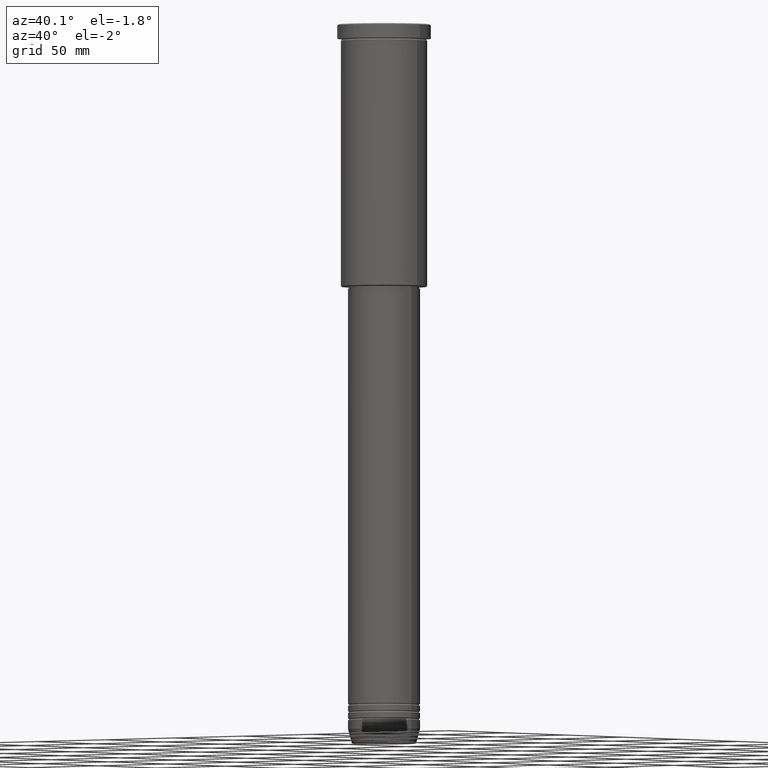
[diagram: clean part render]
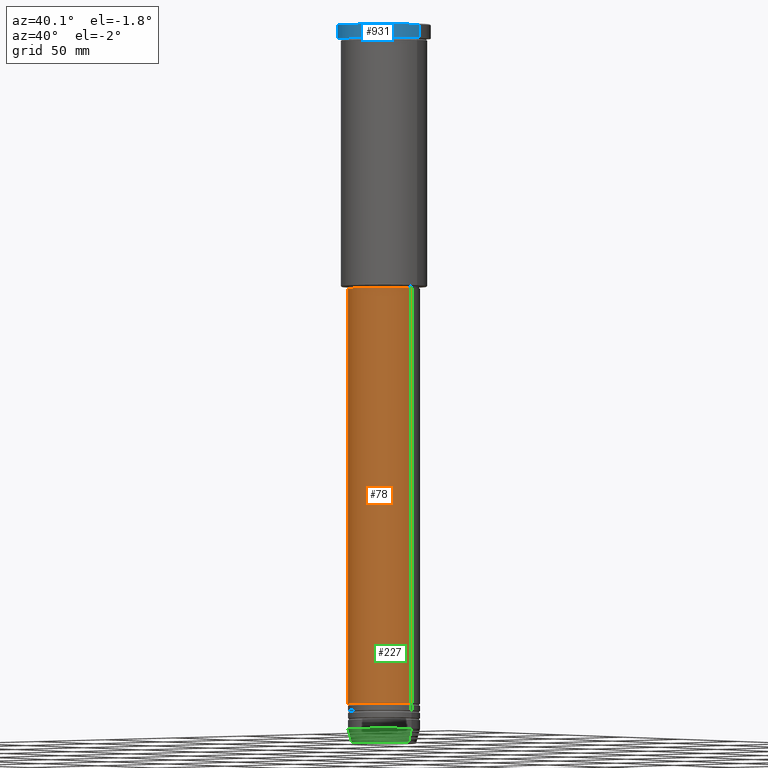
[diagram: same view with three faces highlighted in distinct colors, each labeled with its STEP entity id]
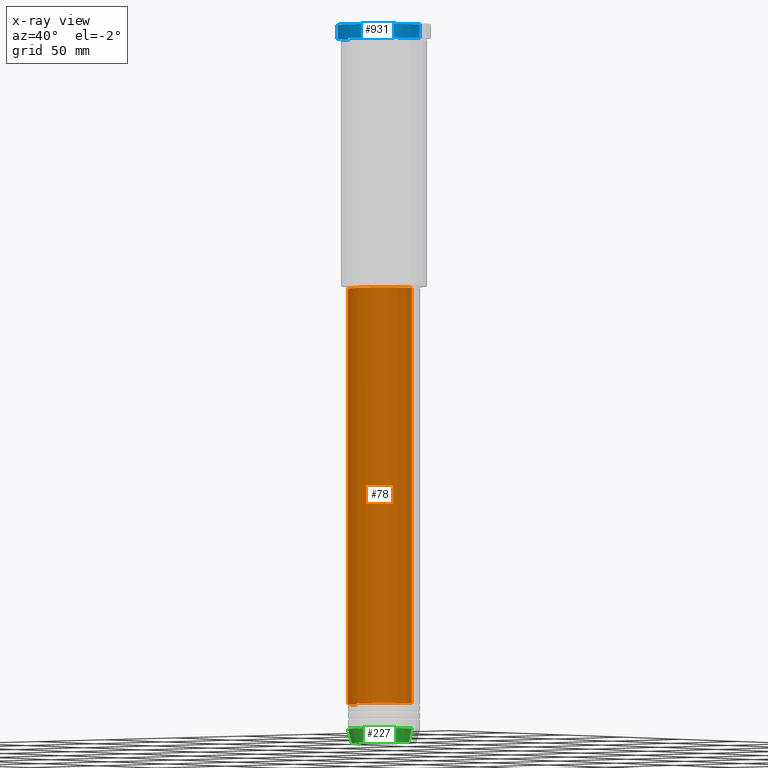
[diagram: x-ray of the same camera — body ghosted, the three highlighted faces saturated]
A machine part, auxiliary view with three faces highlighted in distinct colors.
The next image is the same camera in x-ray (body ghosted, the three faces saturated) — at least one of them is partly hidden behind the body in this view.
Their STEP definitions:

[orange] entity #78 — the highlighted cylindrical surface (edge-blend (fillet) strip) has radius 20 mm, axis along (-0, -0, 1).
#11 = CARTESIAN_POINT ( 'NONE',  ( -20.00000000000000355, 2.449293598294706907E-15, -146.9999999999999147 ) ) ;
#13 = ORIENTED_EDGE ( 'NONE', *, *, #674, .F. ) ;
#57 = LINE ( 'NONE', #596, #468 ) ;
#78 = ADVANCED_FACE ( 'NONE', ( #847 ), #663, .T. ) ;
#85 = VERTEX_POINT ( 'NONE', #1139 ) ;
#104 = AXIS2_PLACEMENT_3D ( 'NONE', #406, #497, #1037 ) ;
#124 = AXIS2_PLACEMENT_3D ( 'NONE', #650, #479, #1179 ) ;
#158 = VECTOR ( 'NONE', #981, 1000.000000000000000 ) ;
#208 = AXIS2_PLACEMENT_3D ( 'NONE', #305, #849, #1040 ) ;
#305 = CARTESIAN_POINT ( 'NONE',  ( 0.000000000000000000, 0.000000000000000000, -146.9999999999999147 ) ) ;
#350 = VERTEX_POINT ( 'NONE', #476 ) ;
#406 = CARTESIAN_POINT ( 'NONE',  ( 0.000000000000000000, 0.000000000000000000, 0.000000000000000000 ) ) ;
#422 = LINE ( 'NONE', #607, #158 ) ;
#459 = EDGE_CURVE ( 'NONE', #919, #350, #1031, .T. ) ;
#468 = VECTOR ( 'NONE', #954, 1000.000000000000000 ) ;
#476 = CARTESIAN_POINT ( 'NONE',  ( 20.00000000000000355, 0.000000000000000000, -378.0000000000000000 ) ) ;
#479 = DIRECTION ( 'NONE',  ( -0.000000000000000000, -0.000000000000000000, 1.000000000000000000 ) ) ;
#497 = DIRECTION ( 'NONE',  ( -0.000000000000000000, -0.000000000000000000, 1.000000000000000000 ) ) ;
#553 = CARTESIAN_POINT ( 'NONE',  ( -20.00000000000000355, 2.449293598294706907E-15, -378.0000000000000000 ) ) ;
#596 = CARTESIAN_POINT ( 'NONE',  ( 20.00000000000000355, 0.000000000000000000, 0.000000000000000000 ) ) ;
#601 = CIRCLE ( 'NONE', #208, 20.00000000000000355 ) ;
#607 = CARTESIAN_POINT ( 'NONE',  ( -20.00000000000000355, 2.449293598294706907E-15, 0.000000000000000000 ) ) ;
#642 = ORIENTED_EDGE ( 'NONE', *, *, #837, .T. ) ;
#650 = CARTESIAN_POINT ( 'NONE',  ( 0.000000000000000000, 0.000000000000000000, -378.0000000000000000 ) ) ;
#663 = CYLINDRICAL_SURFACE ( 'NONE', #104, 20.00000000000000355 ) ;
#674 = EDGE_CURVE ( 'NONE', #1000, #85, #601, .T. ) ;
#779 = ORIENTED_EDGE ( 'NONE', *, *, #834, .F. ) ;
#834 = EDGE_CURVE ( 'NONE', #919, #1000, #422, .T. ) ;
#837 = EDGE_CURVE ( 'NONE', #350, #85, #57, .T. ) ;
#847 = FACE_OUTER_BOUND ( 'NONE', #1107, .T. ) ;
#849 = DIRECTION ( 'NONE',  ( -0.000000000000000000, -0.000000000000000000, 1.000000000000000000 ) ) ;
#919 = VERTEX_POINT ( 'NONE', #553 ) ;
#954 = DIRECTION ( 'NONE',  ( -0.000000000000000000, -0.000000000000000000, 1.000000000000000000 ) ) ;
#981 = DIRECTION ( 'NONE',  ( -0.000000000000000000, -0.000000000000000000, 1.000000000000000000 ) ) ;
#1000 = VERTEX_POINT ( 'NONE', #11 ) ;
#1031 = CIRCLE ( 'NONE', #124, 20.00000000000000355 ) ;
#1037 = DIRECTION ( 'NONE',  ( 1.000000000000000000, 0.000000000000000000, 0.000000000000000000 ) ) ;
#1040 = DIRECTION ( 'NONE',  ( 1.000000000000000000, 0.000000000000000000, 0.000000000000000000 ) ) ;
#1107 = EDGE_LOOP ( 'NONE', ( #779, #1144, #642, #13 ) ) ;
#1139 = CARTESIAN_POINT ( 'NONE',  ( 20.00000000000000355, 0.000000000000000000, -146.9999999999999147 ) ) ;
#1144 = ORIENTED_EDGE ( 'NONE', *, *, #459, .T. ) ;
#1179 = DIRECTION ( 'NONE',  ( 1.000000000000000000, 0.000000000000000000, 0.000000000000000000 ) ) ;

[blue] entity #931 — the highlighted cylindrical surface (partial cylindrical patch) has radius 26 mm, axis along (-0, -0, 1).
#7 = EDGE_CURVE ( 'NONE', #150, #456, #559, .T. ) ;
#37 = CARTESIAN_POINT ( 'NONE',  ( 26.00000000000000000, 0.000000000000000000, -7.999999999999992895 ) ) ;
#76 = ORIENTED_EDGE ( 'NONE', *, *, #7, .T. ) ;
#90 = DIRECTION ( 'NONE',  ( -0.000000000000000000, -0.000000000000000000, 1.000000000000000000 ) ) ;
#109 = ORIENTED_EDGE ( 'NONE', *, *, #201, .F. ) ;
#115 = VERTEX_POINT ( 'NONE', #1029 ) ;
#144 = VECTOR ( 'NONE', #606, 1000.000000000000000 ) ;
#150 = VERTEX_POINT ( 'NONE', #37 ) ;
#155 = ORIENTED_EDGE ( 'NONE', *, *, #519, .T. ) ;
#198 = CARTESIAN_POINT ( 'NONE',  ( 26.00000000000000000, 0.000000000000000000, 0.000000000000000000 ) ) ;
#201 = EDGE_CURVE ( 'NONE', #115, #433, #1161, .T. ) ;
#224 = DIRECTION ( 'NONE',  ( -0.000000000000000000, -0.000000000000000000, 1.000000000000000000 ) ) ;
#231 = EDGE_CURVE ( 'NONE', #456, #433, #470, .T. ) ;
#249 = CARTESIAN_POINT ( 'NONE',  ( -26.00000000000000000, 3.184081677783118191E-15, 0.000000000000000000 ) ) ;
#404 = CARTESIAN_POINT ( 'NONE',  ( 0.000000000000000000, 0.000000000000000000, -7.999999999999992895 ) ) ;
#433 = VERTEX_POINT ( 'NONE', #896 ) ;
#434 = DIRECTION ( 'NONE',  ( 1.000000000000000000, 0.000000000000000000, 0.000000000000000000 ) ) ;
#437 = CARTESIAN_POINT ( 'NONE',  ( 0.000000000000000000, 0.000000000000000000, -0.4999999999999692468 ) ) ;
#448 = VECTOR ( 'NONE', #458, 1000.000000000000000 ) ;
#456 = VERTEX_POINT ( 'NONE', #912 ) ;
#458 = DIRECTION ( 'NONE',  ( -0.000000000000000000, -0.000000000000000000, 1.000000000000000000 ) ) ;
#470 = CIRCLE ( 'NONE', #582, 26.00000000000000000 ) ;
#473 = ORIENTED_EDGE ( 'NONE', *, *, #231, .T. ) ;
#519 = EDGE_CURVE ( 'NONE', #115, #150, #566, .T. ) ;
#531 = EDGE_LOOP ( 'NONE', ( #109, #155, #76, #473 ) ) ;
#547 = CARTESIAN_POINT ( 'NONE',  ( 0.000000000000000000, 0.000000000000000000, 0.000000000000000000 ) ) ;
#559 = LINE ( 'NONE', #198, #448 ) ;
#566 = CIRCLE ( 'NONE', #584, 26.00000000000000000 ) ;
#582 = AXIS2_PLACEMENT_3D ( 'NONE', #437, #1154, #434 ) ;
#584 = AXIS2_PLACEMENT_3D ( 'NONE', #404, #224, #938 ) ;
#606 = DIRECTION ( 'NONE',  ( -0.000000000000000000, -0.000000000000000000, 1.000000000000000000 ) ) ;
#638 = FACE_OUTER_BOUND ( 'NONE', #531, .T. ) ;
#808 = CYLINDRICAL_SURFACE ( 'NONE', #978, 26.00000000000000000 ) ;
#896 = CARTESIAN_POINT ( 'NONE',  ( -26.00000000000000000, 3.184081677783118191E-15, -0.4999999999999692468 ) ) ;
#912 = CARTESIAN_POINT ( 'NONE',  ( 26.00000000000000000, 0.000000000000000000, -0.4999999999999692468 ) ) ;
#931 = ADVANCED_FACE ( 'NONE', ( #638 ), #808, .T. ) ;
#938 = DIRECTION ( 'NONE',  ( 1.000000000000000000, 0.000000000000000000, 0.000000000000000000 ) ) ;
#978 = AXIS2_PLACEMENT_3D ( 'NONE', #547, #90, #1098 ) ;
#1029 = CARTESIAN_POINT ( 'NONE',  ( -26.00000000000000000, 3.184081677783118191E-15, -7.999999999999992895 ) ) ;
#1098 = DIRECTION ( 'NONE',  ( 1.000000000000000000, 0.000000000000000000, 0.000000000000000000 ) ) ;
#1154 = DIRECTION ( 'NONE',  ( 0.000000000000000000, 0.000000000000000000, -1.000000000000000000 ) ) ;
#1161 = LINE ( 'NONE', #249, #144 ) ;

[green] entity #227 — the highlighted conical surface has half-angle 15 deg.
#28 = AXIS2_PLACEMENT_3D ( 'NONE', #284, #550, #634 ) ;
#30 = CARTESIAN_POINT ( 'NONE',  ( 17.95570587970608045, 0.000000000000000000, -399.6294095225512706 ) ) ;
#31 = CARTESIAN_POINT ( 'NONE',  ( 20.00000000000000355, 0.000000000000000000, -392.0000000000000000 ) ) ;
#34 = CARTESIAN_POINT ( 'NONE',  ( 20.00000000000000355, 0.000000000000000000, -392.0000000000000000 ) ) ;
#43 = VECTOR ( 'NONE', #576, 1000.000000000000114 ) ;
#69 = DIRECTION ( 'NONE',  ( -0.000000000000000000, -0.000000000000000000, 1.000000000000000000 ) ) ;
#96 = VERTEX_POINT ( 'NONE', #228 ) ;
#167 = FACE_OUTER_BOUND ( 'NONE', #1177, .T. ) ;
#212 = EDGE_CURVE ( 'NONE', #96, #688, #934, .T. ) ;
#219 = ORIENTED_EDGE ( 'NONE', *, *, #746, .F. ) ;
#227 = ADVANCED_FACE ( 'NONE', ( #167 ), #427, .T. ) ;
#228 = CARTESIAN_POINT ( 'NONE',  ( -17.95570587970608045, 2.324116685748021371E-15, -399.6294095225512706 ) ) ;
#245 = CIRCLE ( 'NONE', #28, 20.00000000000000355 ) ;
#284 = CARTESIAN_POINT ( 'NONE',  ( 0.000000000000000000, 0.000000000000000000, -392.0000000000000000 ) ) ;
#345 = EDGE_CURVE ( 'NONE', #396, #512, #245, .T. ) ;
#347 = DIRECTION ( 'NONE',  ( -0.2588190451025212391, 3.169619151431771721E-17, 0.9659258262890680902 ) ) ;
#396 = VERTEX_POINT ( 'NONE', #1085 ) ;
#408 = LINE ( 'NONE', #34, #43 ) ;
#427 = CONICAL_SURFACE ( 'NONE', #1091, 20.00000000000000355, 0.2617993877991499629 ) ;
#442 = LINE ( 'NONE', #1078, #800 ) ;
#512 = VERTEX_POINT ( 'NONE', #31 ) ;
#550 = DIRECTION ( 'NONE',  ( -0.000000000000000000, -0.000000000000000000, 1.000000000000000000 ) ) ;
#576 = DIRECTION ( 'NONE',  ( 0.2588190451025212391, 0.000000000000000000, 0.9659258262890680902 ) ) ;
#634 = DIRECTION ( 'NONE',  ( 1.000000000000000000, 0.000000000000000000, 0.000000000000000000 ) ) ;
#676 = EDGE_CURVE ( 'NONE', #688, #512, #408, .T. ) ;
#688 = VERTEX_POINT ( 'NONE', #30 ) ;
#712 = ORIENTED_EDGE ( 'NONE', *, *, #212, .T. ) ;
#746 = EDGE_CURVE ( 'NONE', #96, #396, #442, .T. ) ;
#785 = DIRECTION ( 'NONE',  ( 1.000000000000000000, 0.000000000000000000, 0.000000000000000000 ) ) ;
#800 = VECTOR ( 'NONE', #347, 1000.000000000000114 ) ;
#884 = CARTESIAN_POINT ( 'NONE',  ( 0.000000000000000000, 0.000000000000000000, -399.6294095225512706 ) ) ;
#888 = DIRECTION ( 'NONE',  ( -0.000000000000000000, -0.000000000000000000, 1.000000000000000000 ) ) ;
#934 = CIRCLE ( 'NONE', #1051, 17.95570587970608045 ) ;
#963 = DIRECTION ( 'NONE',  ( 1.000000000000000000, 0.000000000000000000, 0.000000000000000000 ) ) ;
#979 = CARTESIAN_POINT ( 'NONE',  ( 0.000000000000000000, 0.000000000000000000, -392.0000000000000000 ) ) ;
#1051 = AXIS2_PLACEMENT_3D ( 'NONE', #884, #69, #785 ) ;
#1054 = ORIENTED_EDGE ( 'NONE', *, *, #345, .F. ) ;
#1078 = CARTESIAN_POINT ( 'NONE',  ( -20.00000000000000355, 2.449293598294706907E-15, -392.0000000000000000 ) ) ;
#1085 = CARTESIAN_POINT ( 'NONE',  ( -20.00000000000000355, 2.449293598294706907E-15, -392.0000000000000000 ) ) ;
#1087 = ORIENTED_EDGE ( 'NONE', *, *, #676, .T. ) ;
#1091 = AXIS2_PLACEMENT_3D ( 'NONE', #979, #888, #963 ) ;
#1177 = EDGE_LOOP ( 'NONE', ( #219, #712, #1087, #1054 ) ) ;